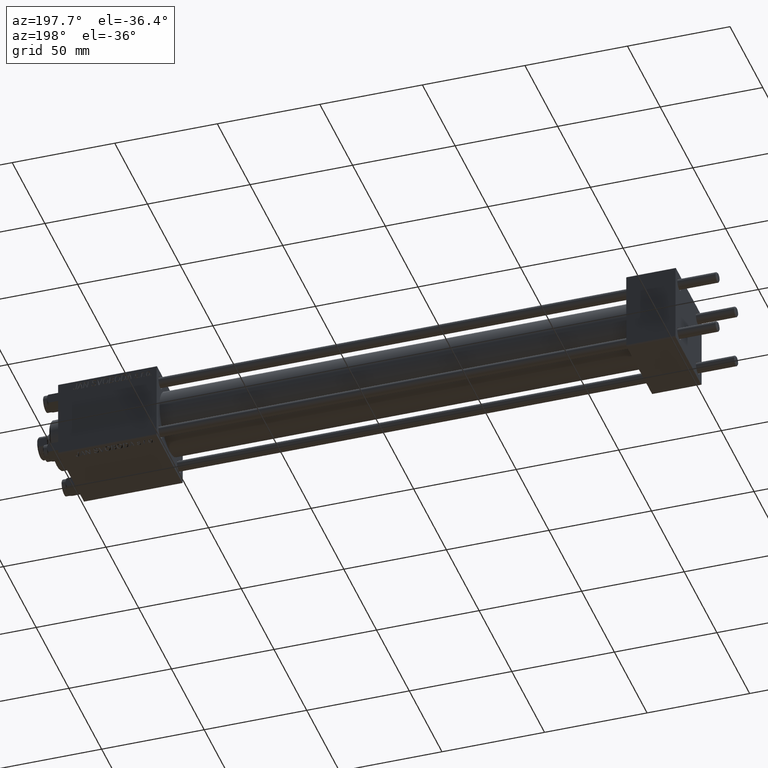
[diagram: clean part render]
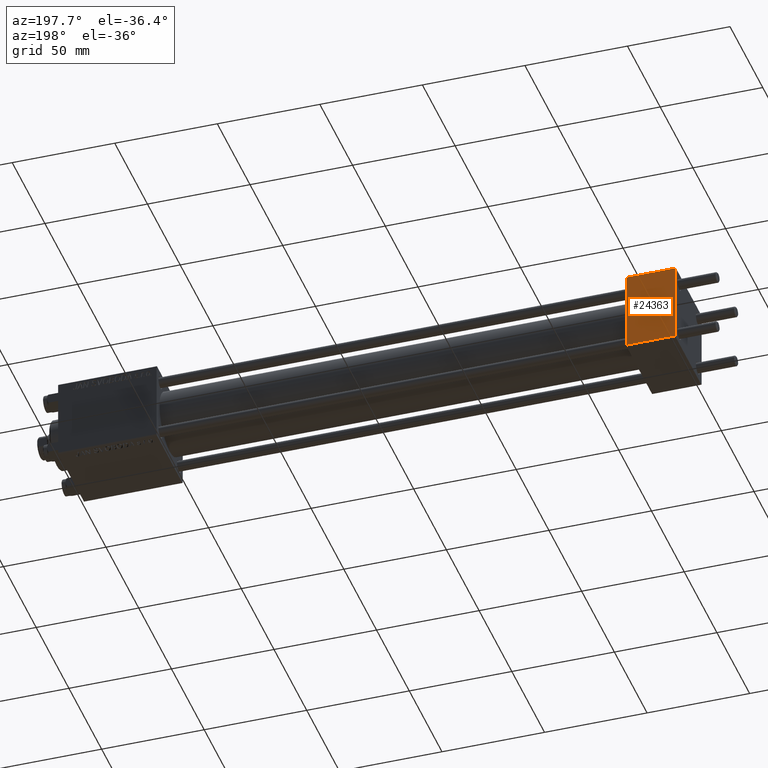
[diagram: same view with one face highlighted and labeled with its STEP entity id]
A machine part, auxiliary view. The second image highlights one B-rep face of the part: STEP entity #24363.
In plain terms, the highlighted planar face has unit normal (0, 1, 0).
Its self-contained STEP definition (entity closure, byte-faithful):
#221 = DIRECTION ( 'NONE',  ( 0.000000000000000000, 0.000000000000000000, -1.000000000000000000 ) ) ;
#450 = CARTESIAN_POINT ( 'NONE',  ( 24.00000000000000000, 20.00000000000000000, 20.00000000000000000 ) ) ;
#820 = VERTEX_POINT ( 'NONE', #30723 ) ;
#1197 = VERTEX_POINT ( 'NONE', #43916 ) ;
#1345 = DIRECTION ( 'NONE',  ( 0.000000000000000000, -0.000000000000000000, 1.000000000000000000 ) ) ;
#1930 = EDGE_CURVE ( 'NONE', #820, #35903, #49784, .T. ) ;
#4597 = ORIENTED_EDGE ( 'NONE', *, *, #48148, .T. ) ;
#6479 = EDGE_LOOP ( 'NONE', ( #49187, #38558, #41808, #4597 ) ) ;
#7764 = CARTESIAN_POINT ( 'NONE',  ( 0.000000000000000000, 20.00000000000000000, 20.00000000000000000 ) ) ;
#8530 = EDGE_CURVE ( 'NONE', #1197, #35903, #26382, .T. ) ;
#9417 = VECTOR ( 'NONE', #25774, 1000.000000000000000 ) ;
#10499 = DIRECTION ( 'NONE',  ( -1.000000000000000000, 0.000000000000000000, 0.000000000000000000 ) ) ;
#14402 = VECTOR ( 'NONE', #10499, 1000.000000000000000 ) ;
#19797 = DIRECTION ( 'NONE',  ( 0.000000000000000000, 0.000000000000000000, -1.000000000000000000 ) ) ;
#24363 = ADVANCED_FACE ( 'NONE', ( #45475 ), #43356, .T. ) ;
#25269 = CARTESIAN_POINT ( 'NONE',  ( 24.00000000000000000, 20.00000000000000000, 19.49999999999999289 ) ) ;
#25774 = DIRECTION ( 'NONE',  ( 1.000000000000000000, 0.000000000000000000, 0.000000000000000000 ) ) ;
#26382 = LINE ( 'NONE', #7764, #39441 ) ;
#26812 = CARTESIAN_POINT ( 'NONE',  ( 24.00000000000000000, 20.00000000000000000, 20.00000000000000000 ) ) ;
#29799 = LINE ( 'NONE', #25269, #9417 ) ;
#30383 = EDGE_CURVE ( 'NONE', #44916, #820, #34171, .T. ) ;
#30723 = CARTESIAN_POINT ( 'NONE',  ( 24.00000000000000000, 20.00000000000000000, -19.50000000000002132 ) ) ;
#31043 = VECTOR ( 'NONE', #19797, 1000.000000000000000 ) ;
#33340 = AXIS2_PLACEMENT_3D ( 'NONE', #26812, #35537, #1345 ) ;
#34171 = LINE ( 'NONE', #450, #31043 ) ;
#35537 = DIRECTION ( 'NONE',  ( -0.000000000000000000, 1.000000000000000000, 0.000000000000000000 ) ) ;
#35903 = VERTEX_POINT ( 'NONE', #48490 ) ;
#38558 = ORIENTED_EDGE ( 'NONE', *, *, #1930, .T. ) ;
#39441 = VECTOR ( 'NONE', #221, 1000.000000000000000 ) ;
#41474 = CARTESIAN_POINT ( 'NONE',  ( 24.00000000000000000, 20.00000000000000000, -19.50000000000002132 ) ) ;
#41808 = ORIENTED_EDGE ( 'NONE', *, *, #8530, .F. ) ;
#43356 = PLANE ( 'NONE',  #33340 ) ;
#43916 = CARTESIAN_POINT ( 'NONE',  ( 0.000000000000000000, 20.00000000000000000, 19.49999999999999289 ) ) ;
#44916 = VERTEX_POINT ( 'NONE', #49723 ) ;
#45475 = FACE_OUTER_BOUND ( 'NONE', #6479, .T. ) ;
#48148 = EDGE_CURVE ( 'NONE', #1197, #44916, #29799, .T. ) ;
#48490 = CARTESIAN_POINT ( 'NONE',  ( 0.000000000000000000, 20.00000000000000000, -19.50000000000002132 ) ) ;
#49187 = ORIENTED_EDGE ( 'NONE', *, *, #30383, .T. ) ;
#49723 = CARTESIAN_POINT ( 'NONE',  ( 24.00000000000000000, 20.00000000000000000, 19.49999999999999289 ) ) ;
#49784 = LINE ( 'NONE', #41474, #14402 ) ;